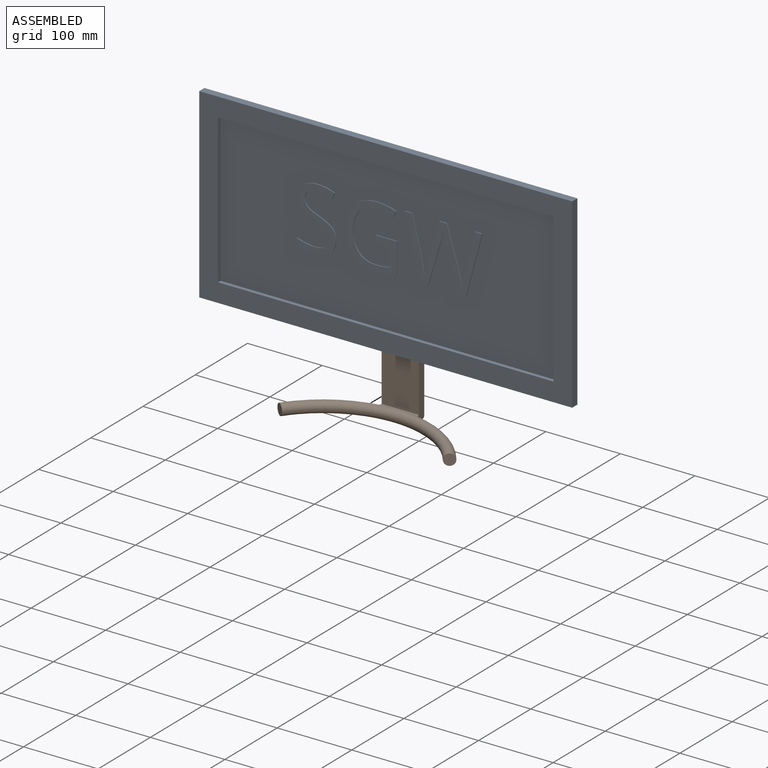
[diagram: assembled view]
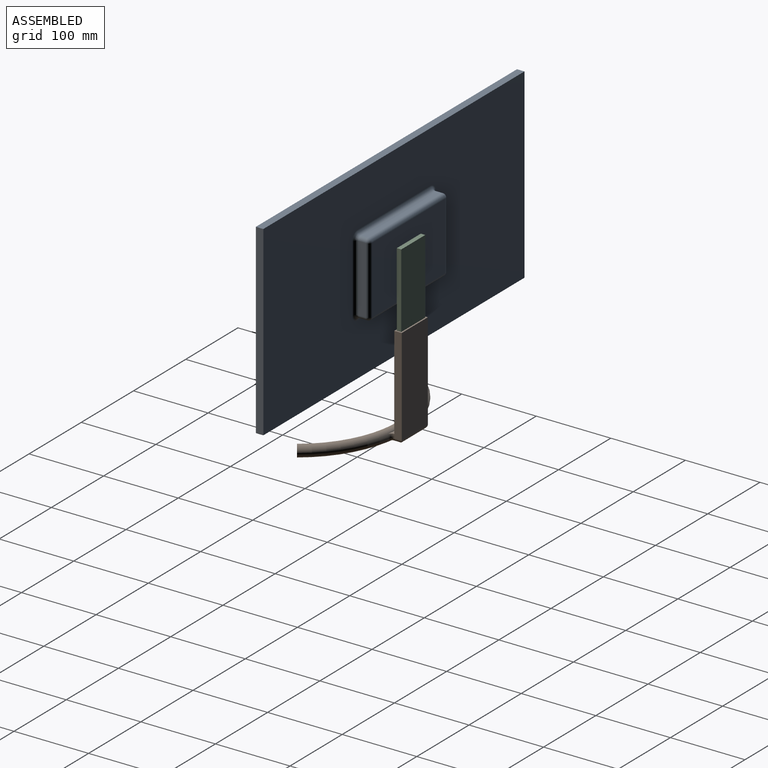
[diagram: assembled view, second angle]
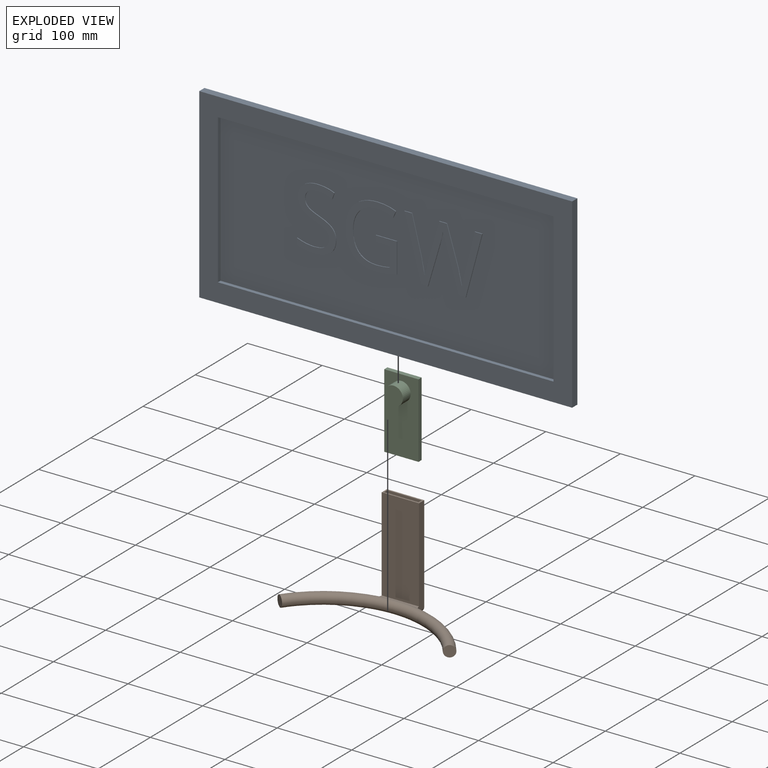
[diagram: exploded view]
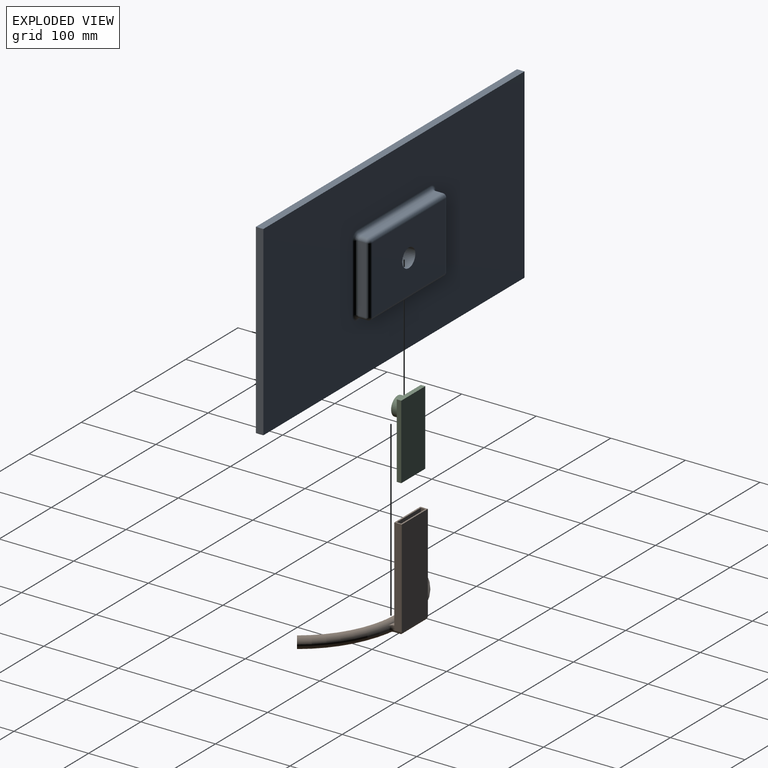
[diagram: exploded view, second angle]
ASSEMBLY  parts=3 mates=2
PART A: 106 faces, bbox 500x30x250 mm
  f0: plane 500x250mm, normal (0,1,0), area 107485.8mm2, adj f1,f2,f3,f4,f20,f24,f25,f29
  f1: plane 500x10mm, normal (0,0,1), area 5000mm2, adj f0,f2,f4,f5
  f2: plane 250x10mm, normal (-1,0,0), area 2500mm2, adj f0,f1,f3,f5
  f3: plane 500x10mm, normal (0,0,-1), area 5000mm2, adj f0,f2,f4,f5
  f4: plane 250x10mm, normal (1,0,0), area 2500mm2, adj f0,f1,f3,f5
  f5: plane 500x250mm, normal (0,-1,0), area 35000mm2, adj f1,f2,f3,f4,f6,f7,f8,f9
  f6: plane 200x5mm, normal (1,0,0), area 1000mm2, adj f5,f7,f9,f10
  f7: plane 450x5mm, normal (0,0,1), area 2250mm2, adj f5,f6,f8,f10
  f8: plane 200x5mm, normal (-1,0,0), area 1000mm2, adj f5,f7,f9,f10
  f9: plane 450x5mm, normal (0,0,-1), area 2250mm2, adj f5,f6,f8,f10
  f10: plane 450x200mm, normal (0,-1,0), area 83390.1mm2, adj f6,f7,f8,f9,f38,f39,f40,f41
  f11: plane 90x10mm, normal (1,0,0), area 900mm2, adj f26,f31,f34,f37
  f12: plane 140x10mm, normal (0,0,-1), area 1400mm2, adj f23,f32,f33,f37
  f13: plane 90x10mm, normal (-1,0,0), area 900mm2, adj f18,f22,f23,f24
  f14: plane 140x10mm, normal (0,0,1), area 1400mm2, adj f18,f21,f25,f26
  f15: plane 140x90mm, normal (0,1,0), area 12109.1mm2, adj f16,f21,f22,f31,f32
  f16: cylinder r=12.5mm len=25mm, axis (0,1,0), area 1178.1mm2, adj f15,f17
  f17: plane 25x25mm, normal (0,1,0), area 490.9mm2, adj f16
  f18: cylinder r=5mm len=10mm, axis (0,-1,0), area 78.5mm2, adj f13,f14,f19,f20
  f19: sphere r=5mm, area 39.3mm2, adj f18,f21,f22
  f20: torus R=10mm, axis (0,-1,0), area 84.1mm2, adj f0,f18,f24,f25
  f21: cylinder r=5mm len=140mm, axis (-1,0,0), area 1099.6mm2, adj f14,f15,f19,f27
  f22: cylinder r=5mm len=90mm, axis (0,0,-1), area 706.9mm2, adj f13,f15,f19,f28
  f23: cylinder r=5mm len=10mm, axis (0,1,0), area 78.5mm2, adj f12,f13,f28,f29
  f24: cylinder r=5mm len=90mm, axis (0,0,-1), area 706.9mm2, adj f0,f13,f20,f29
  f25: cylinder r=5mm len=140mm, axis (-1,0,0), area 1099.6mm2, adj f0,f14,f20,f30
  f26: cylinder r=5mm len=10mm, axis (0,1,0), area 78.5mm2, adj f11,f14,f27,f30
  f27: sphere r=5mm, area 39.3mm2, adj f21,f26,f31
  f28: sphere r=5mm, area 39.3mm2, adj f22,f23,f32
  f29: torus R=10mm, axis (0,-1,0), area 84.1mm2, adj f0,f23,f24,f33
  f30: torus R=10mm, axis (0,-1,0), area 84.1mm2, adj f0,f25,f26,f34
  f31: cylinder r=5mm len=90mm, axis (0,0,1), area 706.9mm2, adj f11,f15,f27,f35
  f32: cylinder r=5mm len=140mm, axis (1,0,0), area 1099.6mm2, adj f12,f15,f28,f35
  f33: cylinder r=5mm len=140mm, axis (1,0,0), area 1099.6mm2, adj f0,f12,f29,f36
  f34: cylinder r=5mm len=90mm, axis (0,0,1), area 706.9mm2, adj f0,f11,f30,f36
  f35: sphere r=5mm, area 39.3mm2, adj f31,f32,f37
  f36: torus R=10mm, axis (0,-1,0), area 84.1mm2, adj f0,f33,f34,f37
  f37: cylinder r=5mm len=10mm, axis (0,-1,0), area 78.5mm2, adj f11,f12,f35,f36
  f38: extruded ~13.83x4.9mm, area 15mm2, adj f10,f39,f62,f63
  f39: extruded ~17.96x9.99mm, area 20.7mm2, adj f10,f38,f40,f63
  f40: extruded ~11.55x5.07mm, area 12.6mm2, adj f10,f39,f41,f63
  f41: extruded ~5.36x5.06mm, area 7.4mm2, adj f10,f40,f42,f63
  f42: extruded ~7.06x1.59mm, area 7.3mm2, adj f10,f41,f43,f63
  f43: extruded ~9.13x4.31mm, area 10.5mm2, adj f10,f42,f44,f63
  f44: extruded ~11.97x3.29mm, area 12.6mm2, adj f10,f43,f45,f63
  f45: extruded ~19.97x4.3mm, area 20.6mm2, adj f10,f44,f46,f63
  f46: plane 8.39x3.01mm, normal (0.94,0,-0.34), area 8.9mm2, adj f10,f45,f47,f63
  f47: extruded ~22.75x4.54mm, area 23.4mm2, adj f10,f46,f48,f63
  f48: extruded ~19.07x5.67mm, area 20.3mm2, adj f10,f47,f49,f63
  f49: extruded ~15.26x7.2mm, area 17.5mm2, adj f10,f48,f50,f63
  f50: extruded ~14.81x4.97mm, area 16mm2, adj f10,f49,f51,f63
  f51: extruded ~16.53x9.81mm, area 19.4mm2, adj f10,f50,f52,f63
  f52: extruded ~12.34x5.27mm, area 13.4mm2, adj f10,f51,f53,f63
  f53: extruded ~5.79x5.08mm, area 7.8mm2, adj f10,f52,f54,f63
  f54: extruded ~7.05x1.73mm, area 7.4mm2, adj f10,f53,f55,f63
  f55: extruded ~10.19x4.88mm, area 11.8mm2, adj f10,f54,f56,f63
  f56: extruded ~14.52x3.66mm, area 15.2mm2, adj f10,f55,f57,f63
  f57: extruded ~11.91x1.25mm, area 12mm2, adj f10,f56,f58,f63
  f58: extruded ~11.13x3.4mm, area 11.7mm2, adj f10,f57,f59,f63
  f59: plane 9.3x1mm, normal (-1,0,0), area 9.3mm2, adj f10,f58,f60,f63
  f60: extruded ~22.69x3.81mm, area 23.2mm2, adj f10,f59,f61,f63
  f61: extruded ~21.56x6.14mm, area 22.8mm2, adj f10,f60,f62,f63
  f62: extruded ~17.08x7.94mm, area 19.6mm2, adj f10,f38,f61,f63
  f63: plane 85.27x52.2mm, normal (0,-1,0), area 1592.5mm2, adj f38,f39,f40,f41,f42,f43,f44,f45
  f64: plane 8.62x1mm, normal (-1,0,0), area 8.6mm2, adj f10,f65,f83,f84
  f65: plane 18.54x1mm, normal (0,0,-1), area 18.5mm2, adj f10,f64,f66,f84
  f66: plane 25.53x1mm, normal (-1,0,0), area 25.5mm2, adj f10,f65,f67,f84
  f67: extruded ~16.85x2mm, area 17mm2, adj f10,f66,f68,f84
  f68: extruded ~24.08x8.68mm, area 26.3mm2, adj f10,f67,f69,f84
  f69: extruded ~25.47x8.2mm, area 27.4mm2, adj f10,f68,f70,f84
  f70: extruded ~25.03x8.51mm, area 27.1mm2, adj f10,f69,f71,f84
  f71: extruded ~23.66x9.01mm, area 26.1mm2, adj f10,f70,f72,f84
  f72: extruded ~21.62x4.76mm, area 22.3mm2, adj f10,f71,f73,f84
  f73: plane 8.51x3.74mm, normal (0.92,0,-0.4), area 9.3mm2, adj f10,f72,f74,f84
  f74: extruded ~24.75x4.87mm, area 25.4mm2, adj f10,f73,f75,f84
  f75: extruded ~22.85x5.13mm, area 23.6mm2, adj f10,f74,f76,f84
  f76: extruded ~14.95x14.86mm, area 21.4mm2, adj f10,f75,f77,f84
  f77: extruded ~22.68x5.19mm, area 23.5mm2, adj f10,f76,f78,f84
  f78: extruded ~31.4x10.49mm, area 33.9mm2, adj f10,f77,f79,f84
  f79: extruded ~29.32x11.21mm, area 32.3mm2, adj f10,f78,f80,f84
  f80: extruded ~15.78x1.08mm, area 15.8mm2, adj f10,f79,f81,f84
  f81: extruded ~13.4x3.19mm, area 13.8mm2, adj f10,f80,f82,f84
  f82: plane 40.34x1mm, normal (1,0,0), area 40.3mm2, adj f10,f81,f83,f84
  f83: plane 28.19x1mm, normal (0,0,1), area 28.2mm2, adj f10,f64,f82,f84
  f84: plane 85.27x68.99mm, normal (0,-1,0), area 2083mm2, adj f64,f65,f66,f67,f68,f69,f70,f71
  f85: plane 82.95x22.19mm, normal (0.97,0,-0.26), area 85.9mm2, adj f10,f86,f104,f105
  f86: plane 10.22x1mm, normal (0,0,1), area 10.2mm2, adj f10,f85,f87,f105
  f87: plane 51.12x13.05mm, normal (-0.97,0,0.25), area 52.8mm2, adj f10,f86,f88,f105
  f88: extruded ~19.63x4.09mm, area 20.1mm2, adj f10,f87,f89,f105
  f89: extruded ~19.86x4.59mm, area 20.4mm2, adj f10,f88,f90,f105
  f90: plane 50.89x15.6mm, normal (0.96,0,0.29), area 53.2mm2, adj f10,f89,f91,f105
  f91: plane 10.22x1mm, normal (0,0,1), area 10.2mm2, adj f10,f90,f92,f105
  f92: plane 50.43x14.85mm, normal (-0.96,0,0.28), area 52.6mm2, adj f10,f91,f93,f105
  f93: extruded ~20.32x4.54mm, area 20.8mm2, adj f10,f92,f94,f105
  f94: extruded ~19.52x3.98mm, area 19.9mm2, adj f10,f93,f95,f105
  f95: plane 51.23x13.11mm, normal (0.97,0,0.25), area 52.9mm2, adj f10,f94,f96,f105
  f96: plane 10.22x1mm, normal (0,0,1), area 10.2mm2, adj f10,f95,f97,f105
  f97: plane 82.95x22.08mm, normal (-0.97,0,-0.26), area 85.8mm2, adj f10,f96,f98,f105
  f98: plane 9.53x1mm, normal (0,0,-1), area 9.5mm2, adj f10,f97,f99,f105
  f99: plane 55.21x16.23mm, normal (0.96,0,-0.28), area 57.5mm2, adj f10,f98,f100,f105
  f100: extruded ~16.39x3.98mm, area 16.9mm2, adj f10,f99,f101,f105
  f101: extruded ~6.75x1.53mm, area 6.9mm2, adj f10,f100,f102,f105
  f102: extruded ~9.31x2.67mm, area 9.7mm2, adj f10,f101,f103,f105
  f103: plane 55.54x16.74mm, normal (-0.96,0,-0.29), area 58mm2, adj f10,f102,f104,f105
  f104: plane 9.53x1mm, normal (0,0,-1), area 9.5mm2, adj f10,f85,f103,f105
  f105: plane 104.46x82.95mm, normal (0,-1,0), area 2934.4mm2, adj f85,f86,f87,f88,f89,f90,f91,f92
PART B: 35 faces, bbox 260.2x83.6x137.4 mm
  f0: plane 50x10mm, normal (0,0,1), area 224mm2, adj f4,f5,f8,f9,f21,f22,f25,f26
  f1: torus R=138.99mm, axis (0,0,1), area 11922.6mm2, adj f2,f3,f6,f11,f13,f15,f16,f17
  f2: plane 15x12.29mm, normal (0.57,-0.82,0), area 176.7mm2, adj f1
  f3: plane 15x12.29mm, normal (-0.57,-0.82,0), area 176.7mm2, adj f1
  f4: plane 130.01x10.33mm, normal (1,0,0), area 1298.6mm2, adj f0,f6,f8,f9,f14,f17
  f5: plane 130x10.32mm, normal (-1,0,0), area 1298.6mm2, adj f0,f6,f8,f9,f10,f11
  f6: plane 58.68x6.22mm, normal (0,0,1), area 192.9mm2, adj f1,f4,f5,f9,f11,f17
  f7: plane 40x8.56mm, normal (0,0,-1), area 305.6mm2, adj f10,f12,f14,f15
  f8: plane 130x50mm, normal (0,1,0), area 6500mm2, adj f0,f4,f5,f12
  f9: plane 125x50mm, normal (0,-1,0), area 6250mm2, adj f0,f4,f5,f6
  f10: cylinder r=5mm len=13.56mm, axis (0,1,0), area 70.8mm2, adj f5,f7,f12,f13
  f11: bspline ~9.88x6.88mm, area 35.1mm2, adj f1,f5,f6,f13
  f12: cylinder r=5mm len=50mm, axis (1,0,0), area 353.4mm2, adj f7,f8,f10,f14
  f13: bspline ~9.79x7.17mm, area 47mm2, adj f1,f10,f11,f15
  f14: cylinder r=5mm len=13.56mm, axis (0,-1,0), area 70.8mm2, adj f4,f7,f12,f16
  f15: torus R=145.77mm, axis (0,0,1), area 114mm2, adj f1,f7,f13,f16
  f16: bspline ~11.08x6.9mm, area 47mm2, adj f1,f14,f15,f17
  f17: bspline ~10.5x7.2mm, area 35.1mm2, adj f1,f4,f6,f16
  f18: torus R=138.99mm, axis (0,0,1), area 8640.6mm2, adj f19,f20,f23,f28,f30,f32,f33,f34
  f19: plane 11x9.02mm, normal (-0.57,0.82,0), area 95.1mm2, adj f18
  f20: plane 11x9.02mm, normal (0.57,0.82,0), area 95.1mm2, adj f18
  f21: plane 130.01x7.73mm, normal (-1,0,0), area 784.6mm2, adj f0,f23,f25,f26,f31,f34
  f22: plane 130x7.73mm, normal (1,0,0), area 784.6mm2, adj f0,f23,f25,f26,f27,f28
  f23: plane 57.93x9.39mm, normal (0,0,-1), area 322.3mm2, adj f18,f21,f22,f26,f28,f34
  f24: plane 40x8.56mm, normal (0,0,1), area 305.6mm2, adj f27,f29,f31,f32
  f25: plane 130x46mm, normal (0,-1,0), area 5980mm2, adj f0,f21,f22,f29
  f26: plane 127x46mm, normal (0,1,0), area 5842mm2, adj f0,f21,f22,f23
  f27: cylinder r=3mm len=11.56mm, axis (0,1,0), area 37.8mm2, adj f22,f24,f29,f30
  f28: bspline ~8.18x7.75mm, area 28.6mm2, adj f18,f22,f23,f30
  f29: cylinder r=3mm len=46mm, axis (1,0,0), area 202.6mm2, adj f24,f25,f27,f31
  f30: bspline ~9.54x8.02mm, area 46.7mm2, adj f18,f27,f28,f32
  f31: cylinder r=3mm len=11.56mm, axis (0,-1,0), area 37.8mm2, adj f21,f24,f29,f33
  f32: torus R=145.77mm, axis (0,0,1), area 158.9mm2, adj f18,f24,f30,f33
  f33: bspline ~10.82x8.02mm, area 46.7mm2, adj f18,f31,f32,f34
  f34: bspline ~8.93x7.96mm, area 28.7mm2, adj f18,f21,f23,f33
PART C: 8 faces, bbox 46x21x100 mm
  f0: plane 100x6mm, normal (-1,0,0), area 600mm2, adj f1,f3,f4,f5
  f1: plane 100x46mm, normal (0,-1,0), area 4109.1mm2, adj f0,f2,f4,f5,f6
  f2: plane 100x6mm, normal (1,0,0), area 600mm2, adj f1,f3,f4,f5
  f3: plane 100x46mm, normal (0,1,0), area 4600mm2, adj f0,f2,f4,f5
  f4: plane 46x6mm, normal (0,0,1), area 276mm2, adj f0,f1,f2,f3
  f5: plane 46x6mm, normal (0,0,-1), area 276mm2, adj f0,f1,f2,f3
  f6: cylinder r=12.5mm len=25mm, axis (0,1,0), area 1178.1mm2, adj f1,f7
  f7: plane 25x25mm, normal (0,-1,0), area 490.9mm2, adj f6
PLACE A t=(22.19,292.66,200.49)mm
PLACE B t=(47.65,263.4,-27.1)mm fixed
PLACE C t=(47.65,263.4,-27.1)mm
MATE revolute A.f16 <-> C.f6  axis (0,1,0) through (47.65,297.66,181.9)mm
MATE slider C.f5 <-> B.f0  axis (0,0,-1) through (47.65,315.66,102.4)mm
